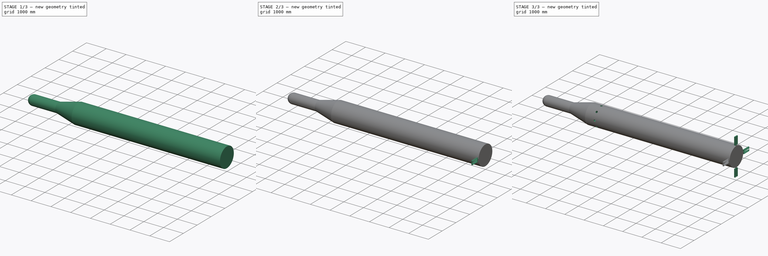
[diagram: build sequence overview — one tinted view per stage of 3, left to right]
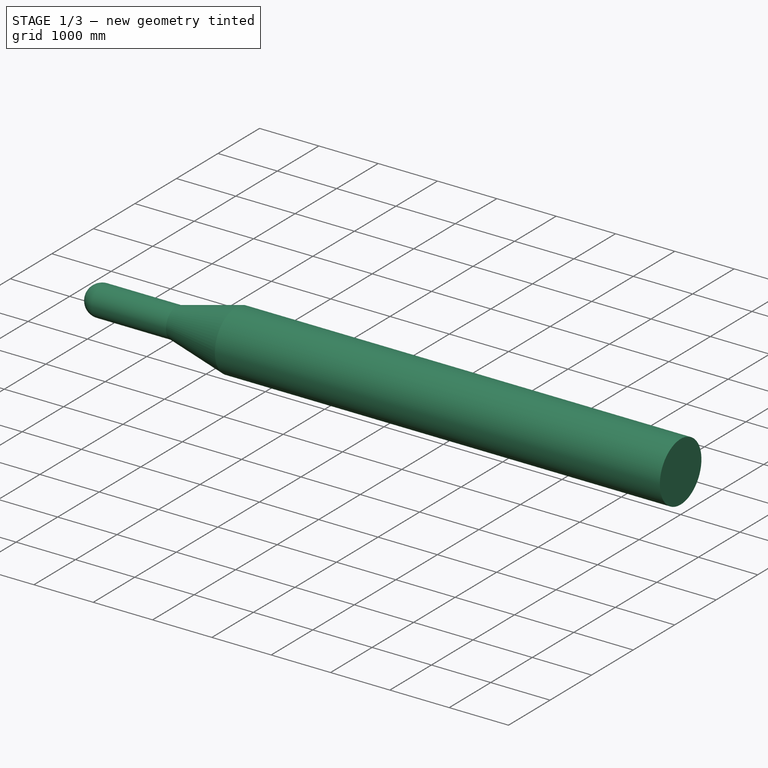
[diagram: stage 1 of 3 — iso view after this stage's code; geometry added in this stage tinted green]
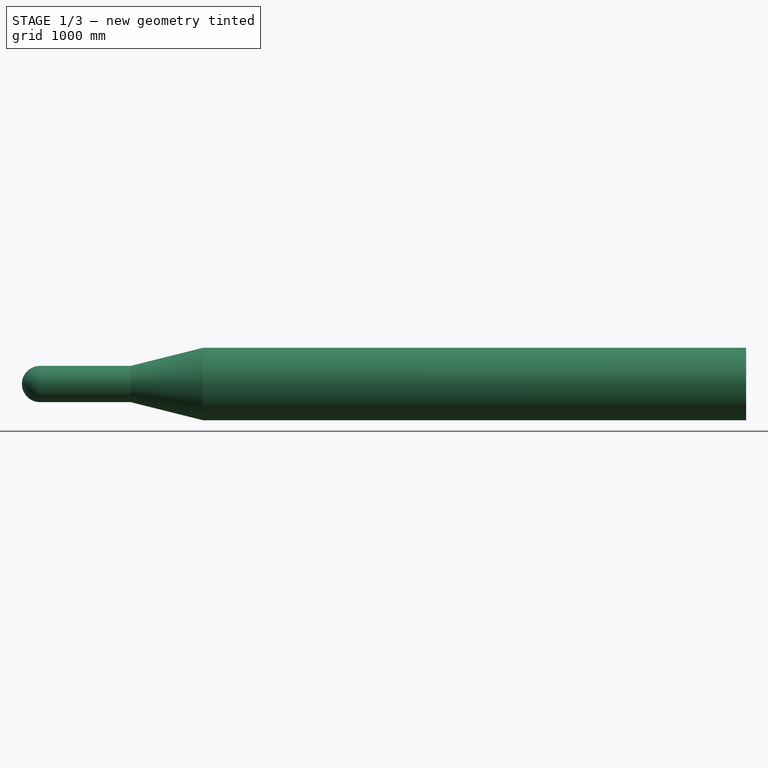
[diagram: stage 1 of 3 — front view after this stage's code; geometry added in this stage tinted green]
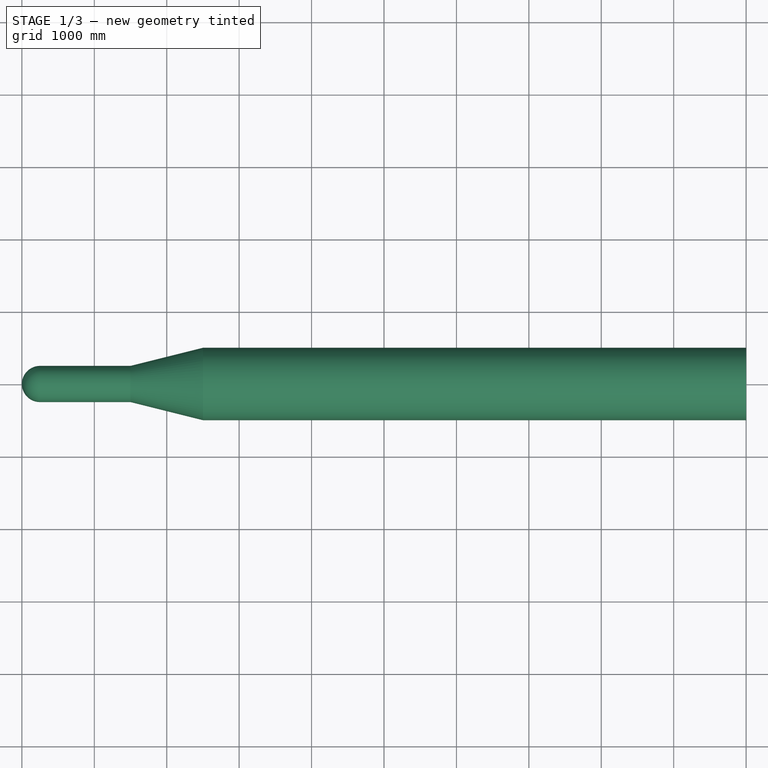
[diagram: stage 1 of 3 — top view after this stage's code; geometry added in this stage tinted green]
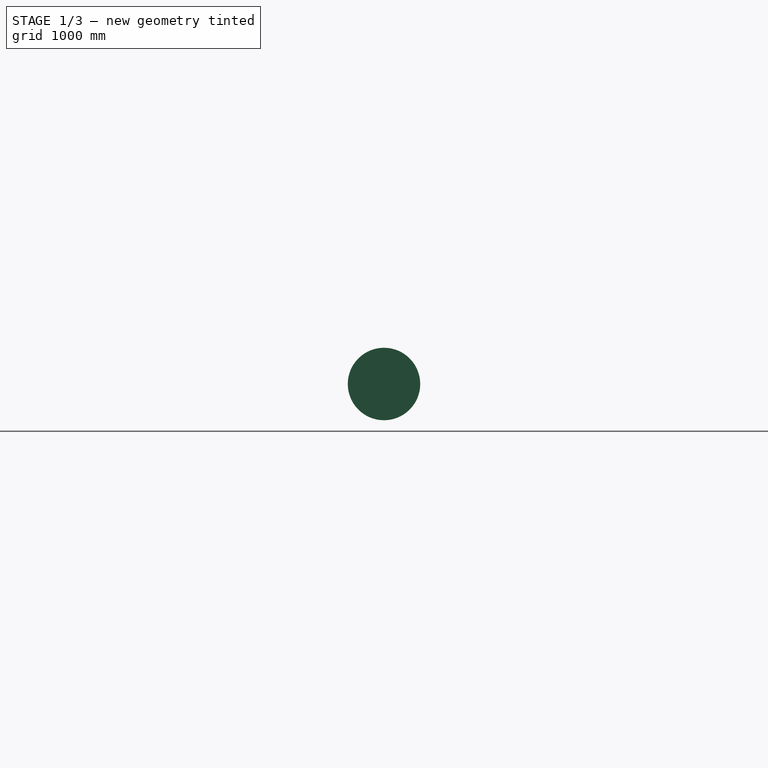
[diagram: stage 1 of 3 — right view after this stage's code; geometry added in this stage tinted green]
FCSTD DOCUMENT  (FreeCAD 0.17R13510 +12 (Git))
Label: CFD_body_model
License: All rights reserved
LicenseURL: http://en.wikipedia.org/wiki/All_rights_reserved
objects: Sketcher::SketchObject×7, PartDesign::Revolution×2, PartDesign::Pad×2, PartDesign::Plane×2, PartDesign::PolarPattern×2, PartDesign::MultiTransform×2, PartDesign::Groove×1, PartDesign::Pocket×1, PartDesign::Body×1
note: 26 computed .brp shape members not serialized (recipe doc carries the construction recipe); baked Part::Feature solids carry a one-line shape summary decoded from their .brp

FEATURE [Sketcher::SketchObject] Sketch
  MapMode = 5
  Support = -> [XY_Plane]
  sketch-geometry (6):
    g0: LineSegment StartX=-7500 StartY=500 StartZ=0 EndX=0 EndY=500 EndZ=0
    g1: LineSegment StartX=0 StartY=500 StartZ=0 EndX=0 EndY=0 EndZ=0
    g2: LineSegment StartX=-7500 StartY=250 StartZ=0 EndX=-10000 EndY=250 EndZ=0
    g3: LineSegment StartX=-7500 StartY=500 StartZ=0 EndX=-7500 EndY=250 EndZ=0
    g4: LineSegment StartX=-10000 StartY=250 StartZ=0 EndX=-10000 EndY=0 EndZ=0
    g5: LineSegment StartX=-10000 StartY=0 StartZ=0 EndX=0 EndY=0 EndZ=0
  constraints (17):
    c: Horizontal(g0)
    c: Distance(g0) = 7500
    c: Coincident(g1,g0)
    c: Coincident(g1,g-1)
    c: Vertical(g1)
    c: Distance(g1) = 500
    c: Horizontal(g2)
    c: Coincident(g3,g0)
    c: Coincident(g3,g2)
    c: Vertical(g3)
    c: Coincident(g4,g2)
    c: Vertical(g4)
    c: Coincident(g5,g4)
    c: Coincident(g5,g-1)
    c: Horizontal(g5)
    c: Distance(g2) = 2500
    c: Distance(g4) = 250
FEATURE [PartDesign::Revolution] Revolution
  Angle = 360
  Axis = (1,0,0)
  Base = (0,0,0)
  Profile = -> Sketch
  ReferenceAxis = -> X_Axis
  Refine = true
FEATURE [Sketcher::SketchObject] Sketch001
  ExternalGeometry = -> [Revolution]
  MapMode = 5
  Support = -> [XY_Plane]
  sketch-geometry (3):
    g0: LineSegment StartX=-7500 StartY=500 StartZ=0 EndX=-8500 EndY=250 EndZ=0
    g1: LineSegment StartX=-8500 StartY=250 StartZ=0 EndX=-7500 EndY=250 EndZ=0
    g2: LineSegment StartX=-7500 StartY=500 StartZ=0 EndX=-7500 EndY=250 EndZ=0
  constraints (8):
    c: Coincident(g0,g-5)
    c: PointOnObject(g0,g-4)
    c: Coincident(g1,g0)
    c: Coincident(g2,g0)
    c: Coincident(g2,g1)
    c: Vertical(g2)
    c: PointOnObject(g1,g-4)
    c: Distance(g1) = 1000
FEATURE [PartDesign::Revolution] Revolution001
  Angle = 360
  Axis = (1,0,0)
  Base = (0,0,0)
  BaseFeature = -> Revolution
  Profile = -> Sketch001
  ReferenceAxis = -> X_Axis
  Refine = true
FEATURE [Sketcher::SketchObject] Sketch002
  ExternalGeometry = -> [Revolution001]
  MapMode = 5
  Support = -> [XY_Plane]
  sketch-geometry (9):
    g0: ArcOfCircle CenterX=-9750 CenterY=0 CenterZ=0 NormalX=0 NormalY=0 NormalZ=1 AngleXU=0 Radius=250 StartAngle=1.5708 EndAngle=3.14159
    g1: LineSegment [constr] StartX=-9750 StartY=0 StartZ=0 EndX=-10000 EndY=0 EndZ=0
    g2: LineSegment [constr] StartX=-10000 StartY=0 StartZ=0 EndX=-10000 EndY=250 EndZ=0
    g3: LineSegment [constr] StartX=-10000 StartY=250 StartZ=0 EndX=-9750 EndY=250 EndZ=0
    g4: LineSegment [constr] StartX=-9750 StartY=250 StartZ=0 EndX=-9750 EndY=0 EndZ=0
    g5: LineSegment StartX=-9750 StartY=250 StartZ=0 EndX=-9750 EndY=500 EndZ=0
    g6: LineSegment StartX=-9750 StartY=500 StartZ=0 EndX=-10250 EndY=500 EndZ=0
    g7: LineSegment StartX=-10250 StartY=500 StartZ=0 EndX=-10250 EndY=0 EndZ=0
    g8: LineSegment StartX=-10250 StartY=0 StartZ=0 EndX=-10000 EndY=0 EndZ=0
  constraints (26):
    c: Radius(g0) = 250
    c: Tangent(g0,g-3)
    c: Coincident(g1,g2)
    c: Coincident(g2,g3)
    c: Coincident(g4,g1)
    c: Horizontal(g1)
    c: Horizontal(g3)
    c: Vertical(g2)
    c: Vertical(g4)
    c: Coincident(g1,g0)
    c: Tangent(g3,g0) = 1.5708
    c: Tangent(g2,g0)
    c: PointOnObject(g4,g3)
    c: PointOnObject(g0,g-4)
    c: Coincident(g5,g0)
    c: Vertical(g5)
    c: Coincident(g6,g5)
    c: Horizontal(g6)
    c: Coincident(g7,g6)
    c: PointOnObject(g7,g-1)
    c: Vertical(g7)
    c: Coincident(g8,g7)
    c: Coincident(g8,g0)
    c: Horizontal(g8)
    c: Equal(g8,g5)
    c: Equal(g8,g1)
FEATURE [PartDesign::Groove] Groove
  Angle = 360
  Axis = (1,0,0)
  Base = (0,0,0)
  BaseFeature = -> Revolution001
  Profile = -> Sketch002
  ReferenceAxis = -> X_Axis
  Refine = true
  Reversed = true
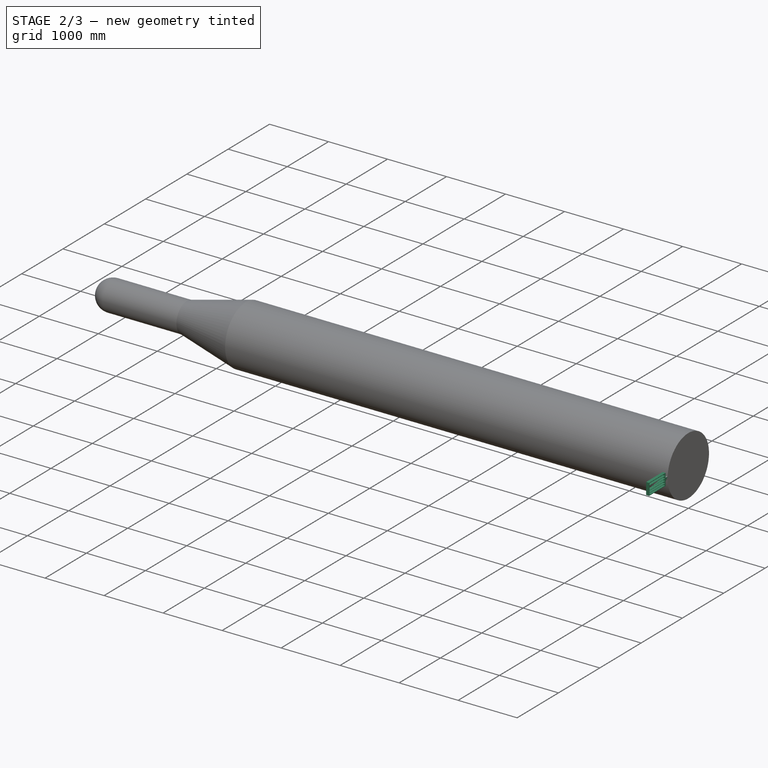
[diagram: stage 2 of 3 — iso view after this stage's code; geometry added in this stage tinted green]
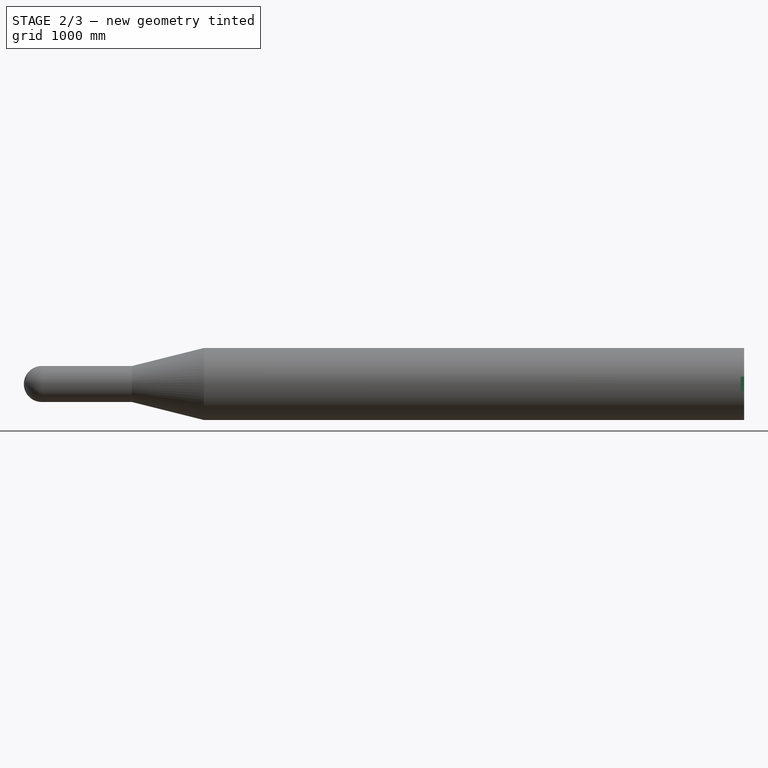
[diagram: stage 2 of 3 — front view after this stage's code; geometry added in this stage tinted green]
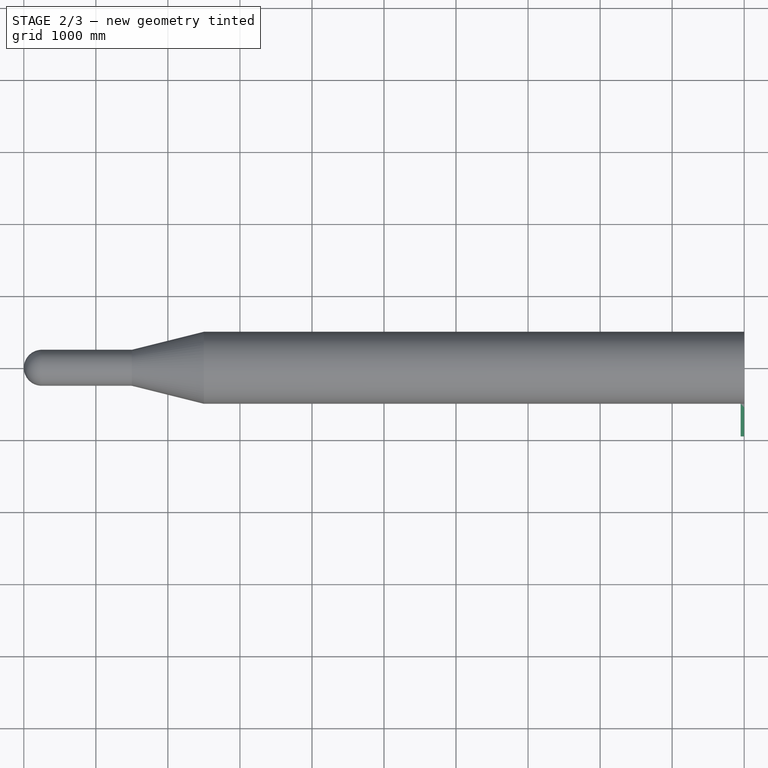
[diagram: stage 2 of 3 — top view after this stage's code; geometry added in this stage tinted green]
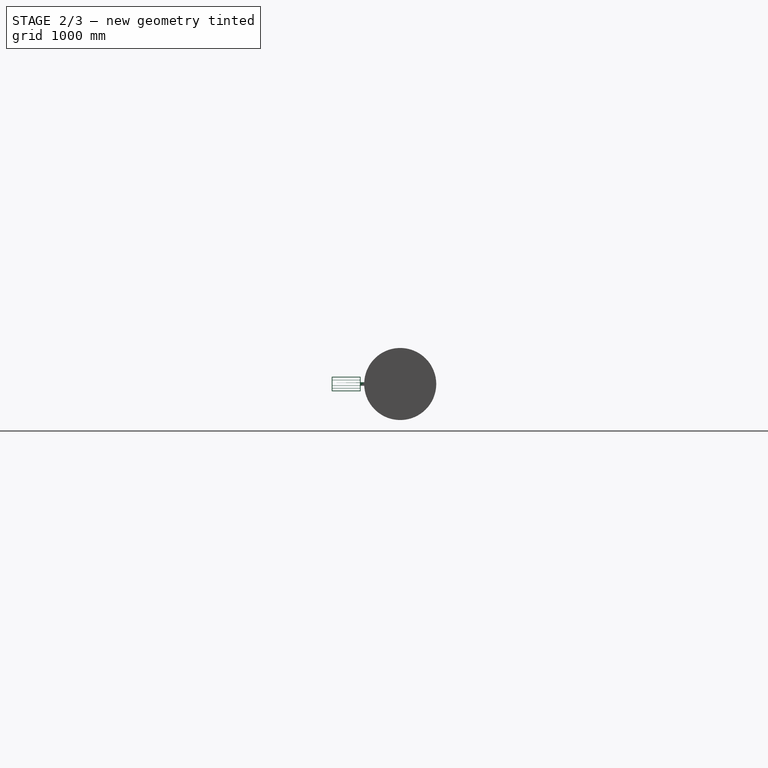
[diagram: stage 2 of 3 — right view after this stage's code; geometry added in this stage tinted green]
FEATURE [Sketcher::SketchObject] Sketch003
  MapMode = 5
  Placement = pos=(0,0,0) rot=(0.57735,0.57735,0.57735;2.0944rad)
  Support = -> [YZ_Plane]
  sketch-geometry (15):
    g0: LineSegment StartX=-950 StartY=100 StartZ=0 EndX=-550 EndY=100 EndZ=0
    g1: LineSegment [constr] StartX=-550 StartY=100 StartZ=0 EndX=-550 EndY=-100 EndZ=0
    g2: LineSegment StartX=-550 StartY=-100 StartZ=0 EndX=-950 EndY=-100 EndZ=0
    g3: LineSegment StartX=-950 StartY=-100 StartZ=0 EndX=-950 EndY=100 EndZ=0
    g4: LineSegment StartX=-550 StartY=-25 StartZ=0 EndX=-450 EndY=-25 EndZ=0
    g5: LineSegment StartX=-550 StartY=25 StartZ=0 EndX=-450 EndY=25 EndZ=0
    g6: LineSegment StartX=-450 StartY=25 StartZ=0 EndX=-450 EndY=-25 EndZ=0
    g7: LineSegment StartX=-550 StartY=100 StartZ=0 EndX=-550 EndY=25 EndZ=0
    g8: LineSegment StartX=-550 StartY=-25 StartZ=0 EndX=-550 EndY=-100 EndZ=0
    g9: LineSegment StartX=-940 StartY=90 StartZ=0 EndX=-560 EndY=90 EndZ=0
    g10: LineSegment StartX=-560 StartY=90 StartZ=0 EndX=-560 EndY=-90 EndZ=0
    g11: LineSegment StartX=-560 StartY=-90 StartZ=0 EndX=-940 EndY=-90 EndZ=0
    g12: LineSegment StartX=-940 StartY=-90 StartZ=0 EndX=-940 EndY=90 EndZ=0
    g13: LineSegment [constr] StartX=-950 StartY=0 StartZ=0 EndX=-940 EndY=0 EndZ=0
    g14: LineSegment [constr] StartX=-750 StartY=100 StartZ=0 EndX=-750 EndY=90 EndZ=0
  constraints (46):
    c: Coincident(g0,g1)
    c: Coincident(g1,g2)
    c: Coincident(g2,g3)
    c: Coincident(g3,g0)
    c: Horizontal(g0)
    c: Horizontal(g2)
    c: Vertical(g3)
    c: Distance(g1) = 200
    c: Distance(g2) = 400
    c: PointOnObject(g4,g1)
    c: Horizontal(g4)
    c: PointOnObject(g5,g1)
    c: Horizontal(g5)
    c: Equal(g5,g4)
    c: Coincident(g6,g5)
    c: Coincident(g6,g4)
    c: Symmetric(g0,g1,g-1)
    c: Symmetric(g4,g5,g-1)
    c: Distance(g5) = 100
    c: Distance(g-1,g6) = 450
    c: Distance(g6) = 50
    c: Coincident(g7,g0)
    c: Coincident(g7,g5)
    c: Coincident(g8,g4)
    c: PointOnObject(g8,g2)
    c: Vertical(g8)
    c: Coincident(g9,g10)
    c: Coincident(g10,g11)
    c: Coincident(g11,g12)
    c: Coincident(g12,g9)
    c: Horizontal(g9)
    c: Horizontal(g11)
    c: Vertical(g10)
    c: Vertical(g12)
    c: Horizontal(g13)
    c: Vertical(g14)
    c: PointOnObject(g13,g-1)
    c: PointOnObject(g13,g12)
    c: PointOnObject(g13,g3)
    c: PointOnObject(g14,g9)
    c: PointOnObject(g14,g0)
    c: Equal(g14,g13)
    c: Symmetric(g0,g0,g14)
    c: Symmetric(g9,g11,g13)
    c: Distance(g13) = 10
    c: Symmetric(g9,g9,g14)
FEATURE [PartDesign::Pad] Pad
  BaseFeature = -> Groove
  Length = 50
  Length2 = 100
  Profile = -> Sketch003
  Refine = true
  Reversed = true
  Type = 0
FEATURE [PartDesign::Plane] DatumPlane
  MapMode = 5
  Placement = pos=(-1e-11,0,0) rot=(0.57735,0.57735,0.57735;2.0944rad)
  Support = -> [Pad]
FEATURE [Sketcher::SketchObject] Sketch004
  ExternalGeometry = -> [Pad]
  MapMode = 5
  Placement = pos=(-1e-11,0,0) rot=(0.57735,0.57735,0.57735;2.0944rad)
  Support = -> [DatumPlane]
  sketch-geometry (22):
    g0: LineSegment StartX=-940 StartY=57 StartZ=0 EndX=-560 EndY=57 EndZ=0
    g1: LineSegment StartX=-560 StartY=57 StartZ=0 EndX=-560 EndY=52 EndZ=0
    g2: LineSegment StartX=-560 StartY=52 StartZ=0 EndX=-940 EndY=52 EndZ=0
    g3: LineSegment StartX=-940 StartY=52 StartZ=0 EndX=-940 EndY=57 EndZ=0
    g4: LineSegment StartX=-940 StartY=19 StartZ=0 EndX=-560 EndY=19 EndZ=0
    g5: LineSegment StartX=-560 StartY=19 StartZ=0 EndX=-560 EndY=14 EndZ=0
    g6: LineSegment StartX=-560 StartY=14 StartZ=0 EndX=-940 EndY=14 EndZ=0
    g7: LineSegment StartX=-940 StartY=14 StartZ=0 EndX=-940 EndY=19 EndZ=0
    g8: LineSegment StartX=-940 StartY=-19 StartZ=0 EndX=-560 EndY=-19 EndZ=0
    g9: LineSegment StartX=-560 StartY=-19 StartZ=0 EndX=-560 EndY=-24 EndZ=0
    g10: LineSegment StartX=-560 StartY=-24 StartZ=0 EndX=-940 EndY=-24 EndZ=0
    g11: LineSegment StartX=-940 StartY=-24 StartZ=0 EndX=-940 EndY=-19 EndZ=0
    g12: LineSegment StartX=-940 StartY=-62 StartZ=0 EndX=-560 EndY=-62 EndZ=0
    g13: LineSegment StartX=-560 StartY=-62 StartZ=0 EndX=-560 EndY=-57 EndZ=0
    g14: LineSegment StartX=-560 StartY=-57 StartZ=0 EndX=-940 EndY=-57 EndZ=0
    g15: LineSegment StartX=-940 StartY=-57 StartZ=0 EndX=-940 EndY=-62 EndZ=0
    g16: LineSegment StartX=-940 StartY=19 StartZ=0 EndX=-940 EndY=14 EndZ=0
    g17: LineSegment [constr] StartX=-940 StartY=57 StartZ=0 EndX=-940 EndY=90 EndZ=0
    g18: LineSegment [constr] StartX=-940 StartY=52 StartZ=0 EndX=-940 EndY=19 EndZ=0
    g19: LineSegment [constr] StartX=-940 StartY=14 StartZ=0 EndX=-940 EndY=-19 EndZ=0
    g20: LineSegment [constr] StartX=-940 StartY=-57 StartZ=0 EndX=-940 EndY=-90 EndZ=0
    g21: LineSegment [constr] StartX=-940 StartY=-24 StartZ=0 EndX=-940 EndY=-57 EndZ=0
  constraints (60):
    c: Coincident(g0,g1)
    c: Coincident(g1,g2)
    c: Coincident(g2,g3)
    c: Coincident(g3,g0)
    c: Horizontal(g0)
    c: Horizontal(g2)
    c: Vertical(g1)
    c: Vertical(g3)
    c: PointOnObject(g0,g-4)
    c: PointOnObject(g1,g-6)
    c: Coincident(g4,g5)
    c: Coincident(g5,g6)
    c: Coincident(g6,g7)
    c: Coincident(g7,g4)
    c: Horizontal(g4)
    c: Horizontal(g6)
    c: Vertical(g5)
    c: Vertical(g7)
    c: PointOnObject(g4,g-4)
    c: PointOnObject(g5,g-6)
    c: Coincident(g8,g9)
    c: Coincident(g9,g10)
    c: Coincident(g10,g11)
    c: Coincident(g11,g8)
    c: Horizontal(g8)
    c: Horizontal(g10)
    c: Vertical(g9)
    c: Vertical(g11)
    c: PointOnObject(g8,g-4)
    c: Coincident(g12,g13)
    c: Coincident(g13,g14)
    c: Coincident(g14,g15)
    c: Coincident(g15,g12)
    c: Horizontal(g12)
    c: Horizontal(g14)
    c: Vertical(g13)
    c: Vertical(g15)
    c: PointOnObject(g12,g-4)
    c: PointOnObject(g13,g-6)
    c: Equal(g13,g9)
    c: Equal(g9,g5)
    c: Equal(g5,g1)
    c: PointOnObject(g9,g-6)
    c: Coincident(g16,g4)
    c: Distance(g3) = 5
    c: Coincident(g16,g6)
    c: Coincident(g17,g0)
    c: Coincident(g17,g-4)
    c: Equal(g19,g18)
    c: Equal(g18,g17)
    c: Coincident(g20,g-5)
    c: Coincident(g2,g18)
    c: Coincident(g18,g4)
    c: Coincident(g19,g6)
    c: Coincident(g19,g8)
    c: Coincident(g20,g14)
    c: Equal(g21,g20)
    c: Coincident(g21,g14)
    c: Coincident(g21,g10)
    c: Equal(g21,g19)
FEATURE [PartDesign::Pad] Pad001
  BaseFeature = -> Pad
  Length = 50
  Length2 = 100
  Profile = -> Sketch004
  Refine = true
  Reversed = true
  Type = 0
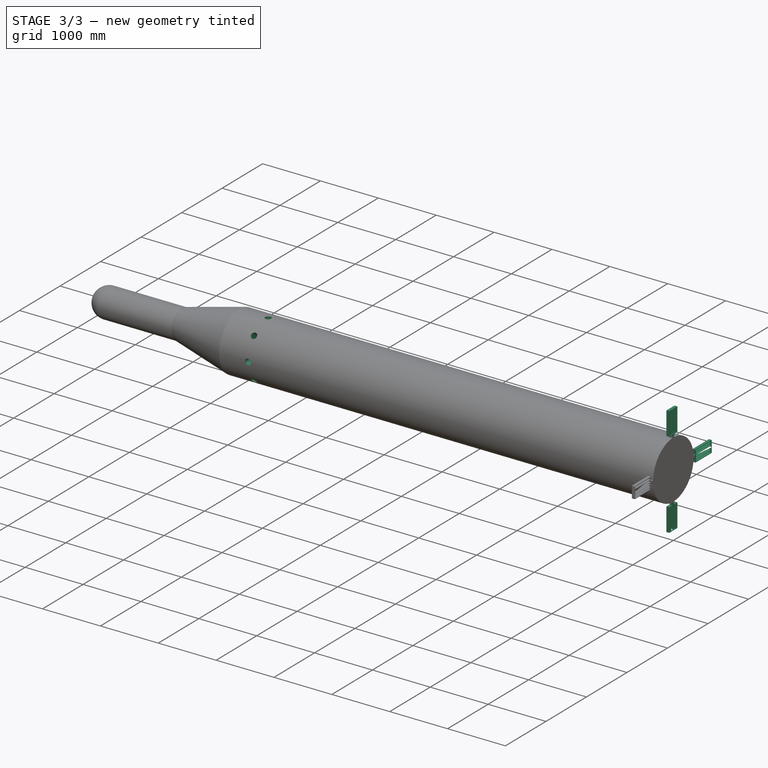
[diagram: stage 3 of 3 — iso view after this stage's code; geometry added in this stage tinted green]
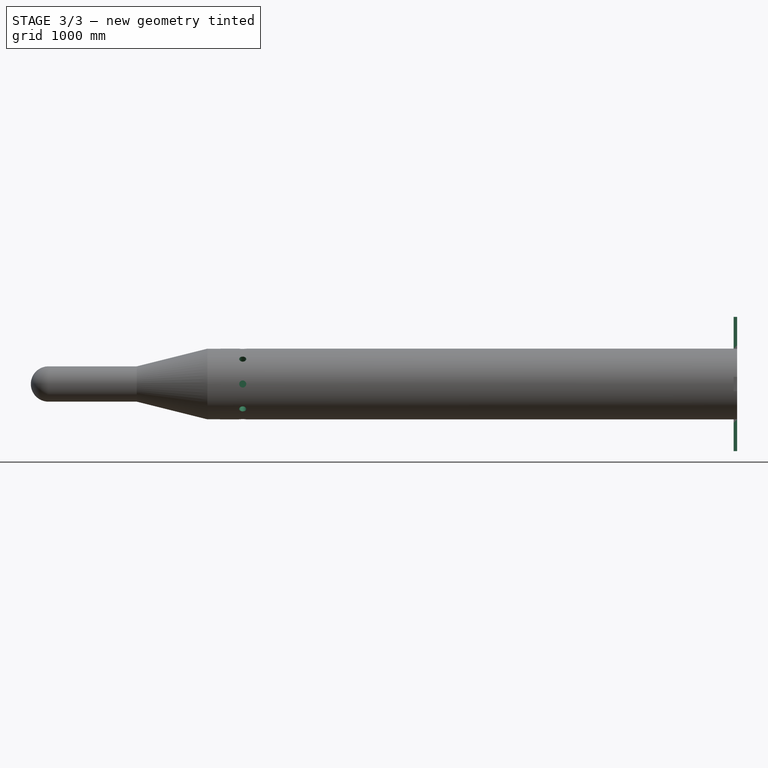
[diagram: stage 3 of 3 — front view after this stage's code; geometry added in this stage tinted green]
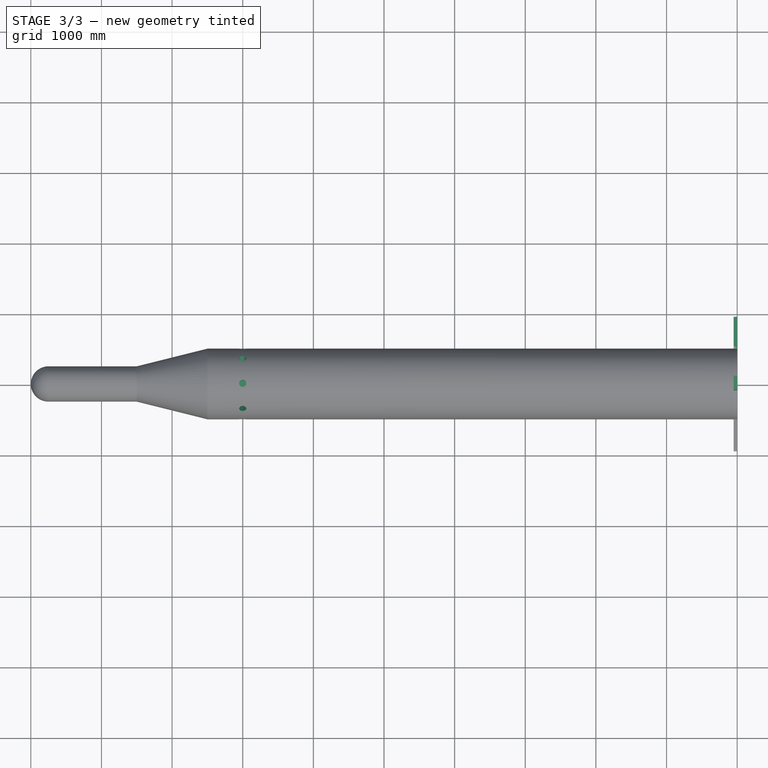
[diagram: stage 3 of 3 — top view after this stage's code; geometry added in this stage tinted green]
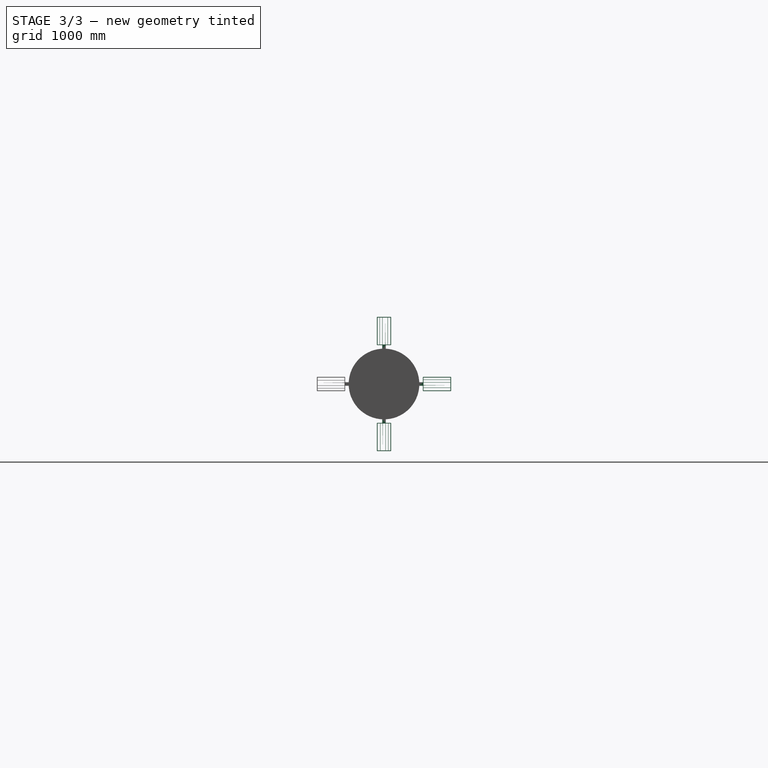
[diagram: stage 3 of 3 — right view after this stage's code; geometry added in this stage tinted green]
FEATURE [PartDesign::PolarPattern] PolarPattern
  Angle = 360
  Axis = -> Sketch003 [N_Axis]
  Occurrences = 4
  Refine = true
FEATURE [PartDesign::MultiTransform] MultiTransform
  BaseFeature = -> Pad001
  Originals = -> [Pad,Pad001]
  Refine = true
  Transformations = -> [PolarPattern]
FEATURE [Sketcher::SketchObject] Sketch005
  MapMode = 5
  Placement = pos=(0,0,0) rot=(1,0,0;1.5708rad)
  Support = -> [XZ_Plane]
  sketch-geometry (1):
    g0: Circle CenterX=-7000 CenterY=0 CenterZ=0 NormalX=0 NormalY=0 NormalZ=1 AngleXU=0 Radius=50
  constraints (3):
    c: Radius(g0) = 50
    c: PointOnObject(g0,g-1)
    c: DistanceX(g-2,g0) = -7000
FEATURE [PartDesign::Plane] DatumPlane001
  AttachmentOffset = pos=(0,0,500) rot=(0,0,1;0rad)
  MapMode = 5
  Placement = pos=(0,0,500) rot=(0,0,1;0rad)
  Support = -> [XY_Plane]
FEATURE [Sketcher::SketchObject] Sketch006
  MapMode = 5
  Placement = pos=(0,0,500) rot=(0,0,1;0rad)
  Support = -> [DatumPlane001]
  sketch-geometry (1):
    g0: Circle CenterX=-7000 CenterY=0 CenterZ=0 NormalX=0 NormalY=0 NormalZ=1 AngleXU=0 Radius=50
  constraints (3):
    c: Radius(g0) = 50
    c: PointOnObject(g0,g-1)
    c: DistanceX(g-2,g0) = -7000
FEATURE [PartDesign::Pocket] Pocket
  BaseFeature = -> MultiTransform
  Length = 200
  Length2 = 100
  Profile = -> Sketch006
  Refine = true
  Type = 0
FEATURE [PartDesign::PolarPattern] PolarPattern001
  Angle = 360
  Axis = -> X_Axis
  Occurrences = 8
  Refine = true
FEATURE [PartDesign::MultiTransform] MultiTransform001
  BaseFeature = -> Pocket
  Originals = -> [Pocket]
  Refine = true
  Transformations = -> [PolarPattern001]
FEATURE [PartDesign::Body] Body
  Group = -> [Sketch,Revolution,Sketch001,Revolution001,Sketch002,Groove,Sketch003,Pad,DatumPlane,Sketch004,Pad001,MultiTransform,PolarPattern,Sketch005,DatumPlane001,Sketch006,Pocket,MultiTransform001,PolarPattern001]
  Origin = -> Origin
  Tip = -> MultiTransform001
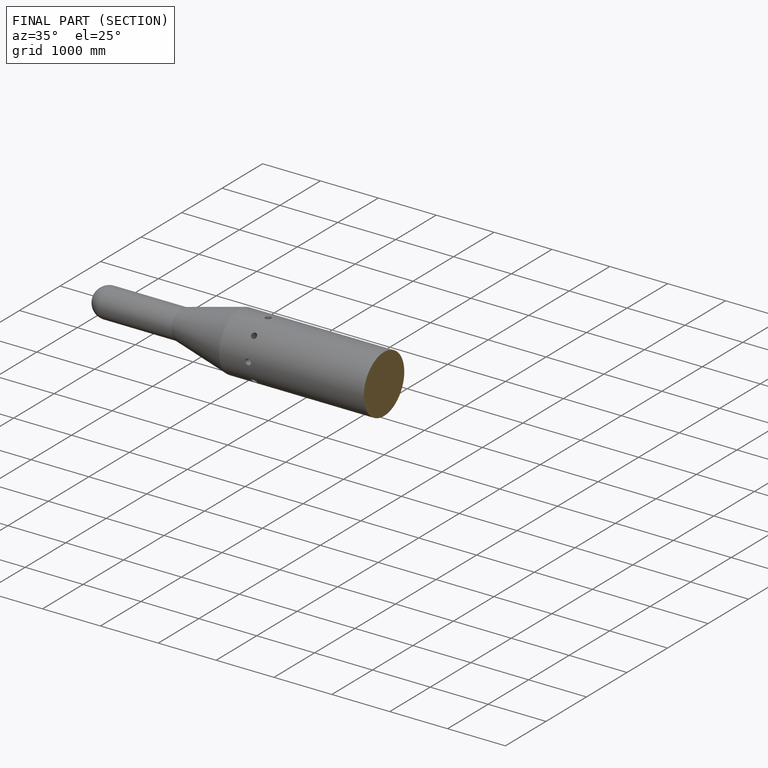
[diagram: finished part — half-section view (interior)]
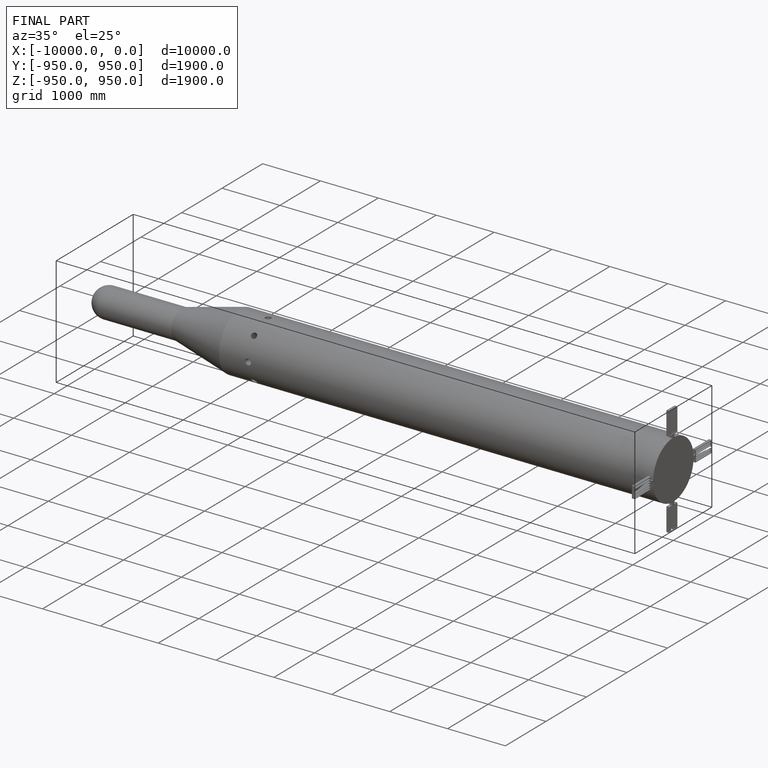
[diagram: finished part — iso view with bounding-box wireframe]
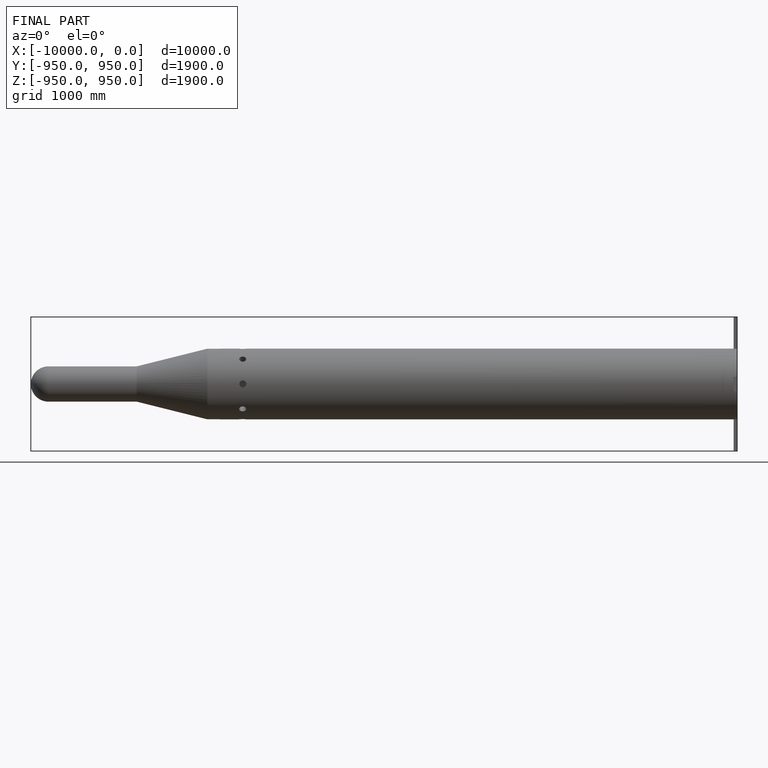
[diagram: finished part — front view with bounding-box wireframe]
